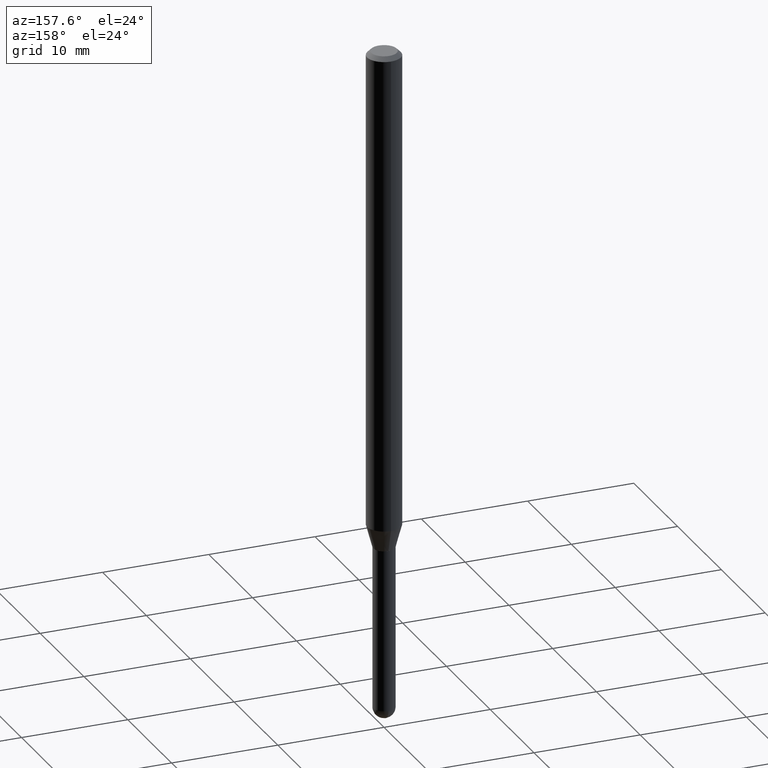
[diagram: clean part render]
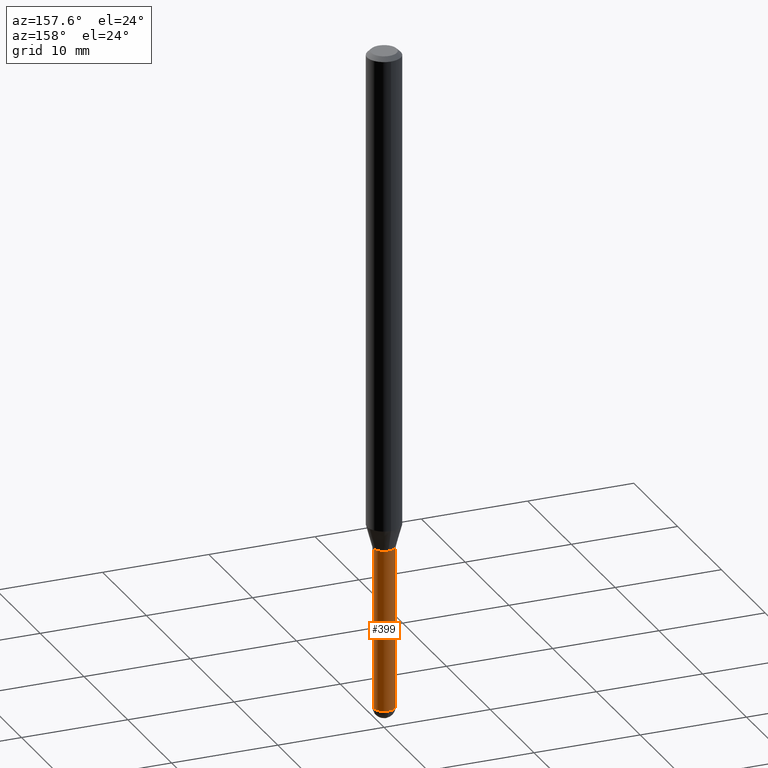
[diagram: same view with one face highlighted and labeled with its STEP entity id]
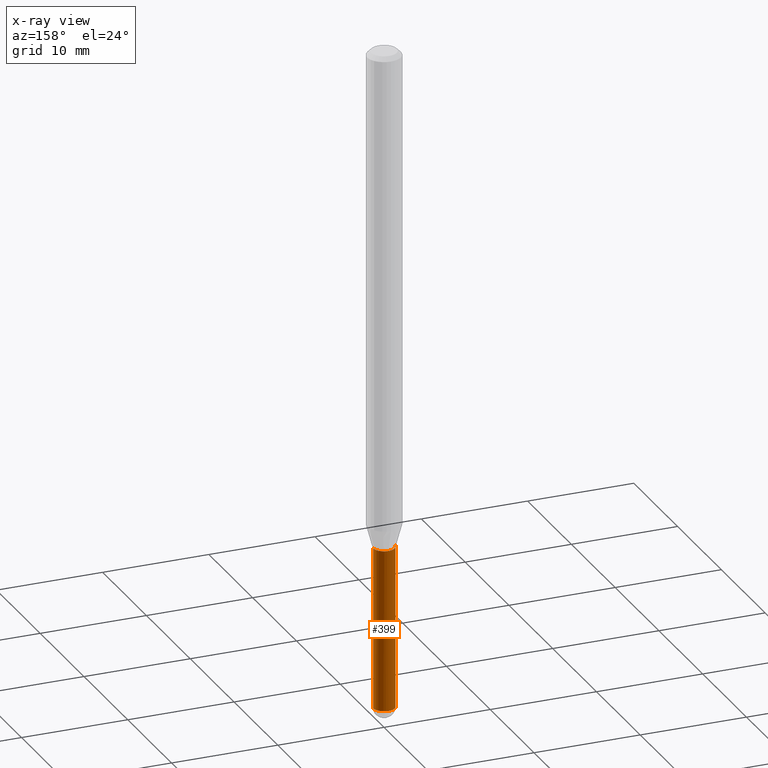
[diagram: x-ray of the same camera — body ghosted, the highlighted face saturated]
A machine part, auxiliary view. The second image highlights one B-rep face of the part: STEP entity #399.
The next image is the same camera in x-ray: the body ghosted, the highlighted face saturated — about 0% of this face is hidden behind the body in this view.
In plain terms, the highlighted cylindrical surface (edge-blend (fillet) strip) has radius 1.016 mm, axis along (-0, 0, 1).
Its self-contained STEP definition (entity closure, byte-faithful):
#22 = AXIS2_PLACEMENT_3D ( 'NONE', #479, #301, #291 ) ;
#23 = ORIENTED_EDGE ( 'NONE', *, *, #99, .T. ) ;
#28 = EDGE_CURVE ( 'NONE', #294, #483, #188, .T. ) ;
#29 = CIRCLE ( 'NONE', #22, 0.04000000000000000083 ) ;
#32 = VECTOR ( 'NONE', #245, 39.37007874015748143 ) ;
#65 = CARTESIAN_POINT ( 'NONE',  ( 2.793185071075110754E-16, 0.03999999999999144518, -2.460000000000000409 ) ) ;
#69 = EDGE_CURVE ( 'NONE', #294, #419, #495, .T. ) ;
#70 = VERTEX_POINT ( 'NONE', #269 ) ;
#96 = DIRECTION ( 'NONE',  ( -2.445468806185136877E-29, 3.491481338843145188E-15, 1.000000000000000000 ) ) ;
#99 = EDGE_CURVE ( 'NONE', #318, #70, #464, .T. ) ;
#107 = DIRECTION ( 'NONE',  ( 1.000000000000000000, -6.982962677686259611E-15, 0.000000000000000000 ) ) ;
#115 = ORIENTED_EDGE ( 'NONE', *, *, #28, .T. ) ;
#134 = DIRECTION ( 'NONE',  ( -2.445468806185136597E-29, 3.491481338843145583E-15, 1.000000000000000000 ) ) ;
#153 = EDGE_CURVE ( 'NONE', #483, #318, #446, .T. ) ;
#154 = AXIS2_PLACEMENT_3D ( 'NONE', #457, #180, #107 ) ;
#177 = CARTESIAN_POINT ( 'NONE',  ( 0.04000000000000000083, -7.820918199008643644E-15, -2.459999999999999964 ) ) ;
#180 = DIRECTION ( 'NONE',  ( -2.445468806185136597E-29, 3.491481338843145583E-15, 1.000000000000000000 ) ) ;
#188 = CIRCLE ( 'NONE', #217, 0.04000000000000000083 ) ;
#202 = DIRECTION ( 'NONE',  ( 1.000000000000000000, -6.982962677686265922E-15, 4.876176775795935793E-29 ) ) ;
#214 = DIRECTION ( 'NONE',  ( 1.000000000000000000, -6.982962677686259611E-15, 0.000000000000000000 ) ) ;
#217 = AXIS2_PLACEMENT_3D ( 'NONE', #445, #134, #214 ) ;
#222 = ORIENTED_EDGE ( 'NONE', *, *, #429, .F. ) ;
#233 = ORIENTED_EDGE ( 'NONE', *, *, #69, .F. ) ;
#241 = CYLINDRICAL_SURFACE ( 'NONE', #243, 0.04000000000000000083 ) ;
#243 = AXIS2_PLACEMENT_3D ( 'NONE', #331, #375, #202 ) ;
#245 = DIRECTION ( 'NONE',  ( -2.445468806185136877E-29, 3.491481338843145188E-15, 1.000000000000000000 ) ) ;
#264 = ORIENTED_EDGE ( 'NONE', *, *, #153, .T. ) ;
#269 = CARTESIAN_POINT ( 'NONE',  ( -0.04000000000000000083, -7.257382597597153280E-15, -1.860000000000000098 ) ) ;
#291 = DIRECTION ( 'NONE',  ( 1.000000000000000000, -6.982962677686259611E-15, 0.000000000000000000 ) ) ;
#294 = VERTEX_POINT ( 'NONE', #177 ) ;
#301 = DIRECTION ( 'NONE',  ( -2.445468806185136597E-29, 3.491481338843145583E-15, 1.000000000000000000 ) ) ;
#318 = VERTEX_POINT ( 'NONE', #344 ) ;
#324 = CARTESIAN_POINT ( 'NONE',  ( -0.04000000000000000083, 2.842170943040400803E-16, -1.967574036101962509E-30 ) ) ;
#331 = CARTESIAN_POINT ( 'NONE',  ( 0.000000000000000000, 0.000000000000000000, 0.000000000000000000 ) ) ;
#344 = CARTESIAN_POINT ( 'NONE',  ( -0.04000000000000000083, -7.257382597597153280E-15, -2.459999999999999964 ) ) ;
#363 = VECTOR ( 'NONE', #96, 39.37007874015748143 ) ;
#375 = DIRECTION ( 'NONE',  ( -2.445468806185136597E-29, 3.491481338843145583E-15, 1.000000000000000000 ) ) ;
#399 = ADVANCED_FACE ( 'NONE', ( #466 ), #241, .T. ) ;
#419 = VERTEX_POINT ( 'NONE', #482 ) ;
#429 = EDGE_CURVE ( 'NONE', #419, #70, #29, .T. ) ;
#441 = EDGE_LOOP ( 'NONE', ( #264, #23, #222, #233, #115 ) ) ;
#445 = CARTESIAN_POINT ( 'NONE',  ( 6.015853263215436432E-29, -8.589044093554138346E-15, -2.459999999999999964 ) ) ;
#446 = CIRCLE ( 'NONE', #154, 0.04000000000000000083 ) ;
#454 = CARTESIAN_POINT ( 'NONE',  ( 0.04000000000000000083, -2.793185071074506290E-16, 1.950470710318374387E-30 ) ) ;
#457 = CARTESIAN_POINT ( 'NONE',  ( 6.015853263215436432E-29, -8.589044093554138346E-15, -2.459999999999999964 ) ) ;
#464 = LINE ( 'NONE', #324, #32 ) ;
#466 = FACE_OUTER_BOUND ( 'NONE', #441, .T. ) ;
#479 = CARTESIAN_POINT ( 'NONE',  ( 4.548571979504354361E-29, -6.494155290248250444E-15, -1.860000000000000098 ) ) ;
#482 = CARTESIAN_POINT ( 'NONE',  ( 0.04000000000000000083, -6.773473797355701271E-15, -1.860000000000000098 ) ) ;
#483 = VERTEX_POINT ( 'NONE', #65 ) ;
#495 = LINE ( 'NONE', #454, #363 ) ;